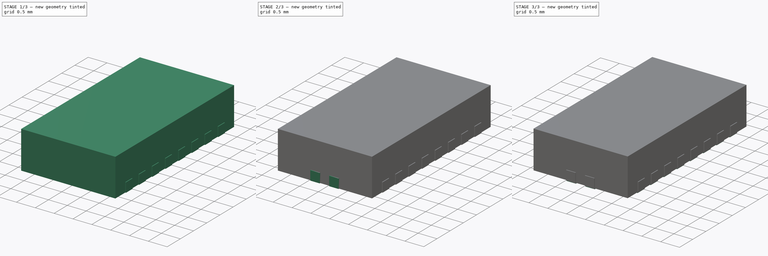
[diagram: build sequence overview — one tinted view per stage of 3, left to right]
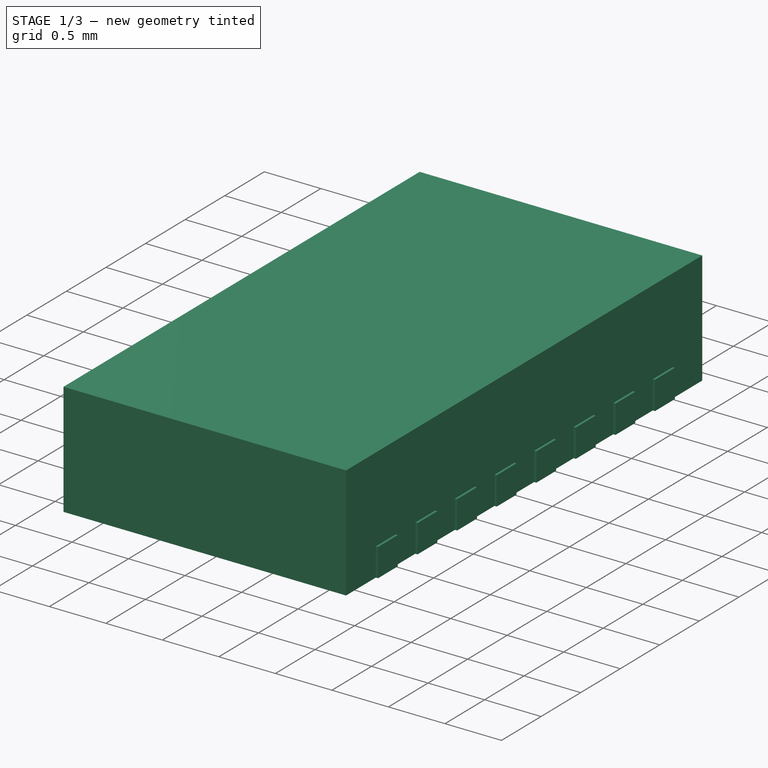
[diagram: stage 1 of 3 — iso view after this stage's code; geometry added in this stage tinted green]
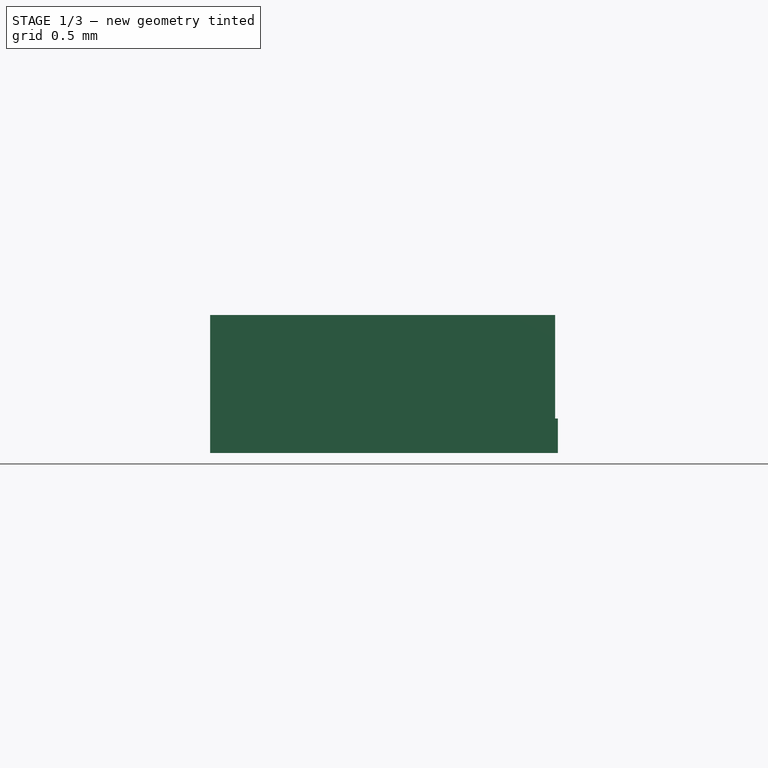
[diagram: stage 1 of 3 — front view after this stage's code; geometry added in this stage tinted green]
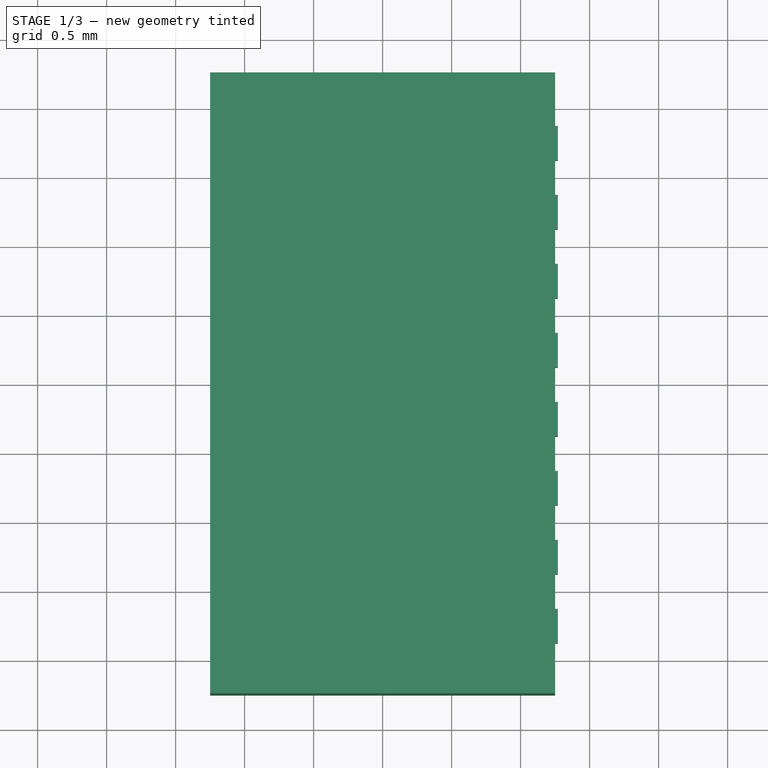
[diagram: stage 1 of 3 — top view after this stage's code; geometry added in this stage tinted green]
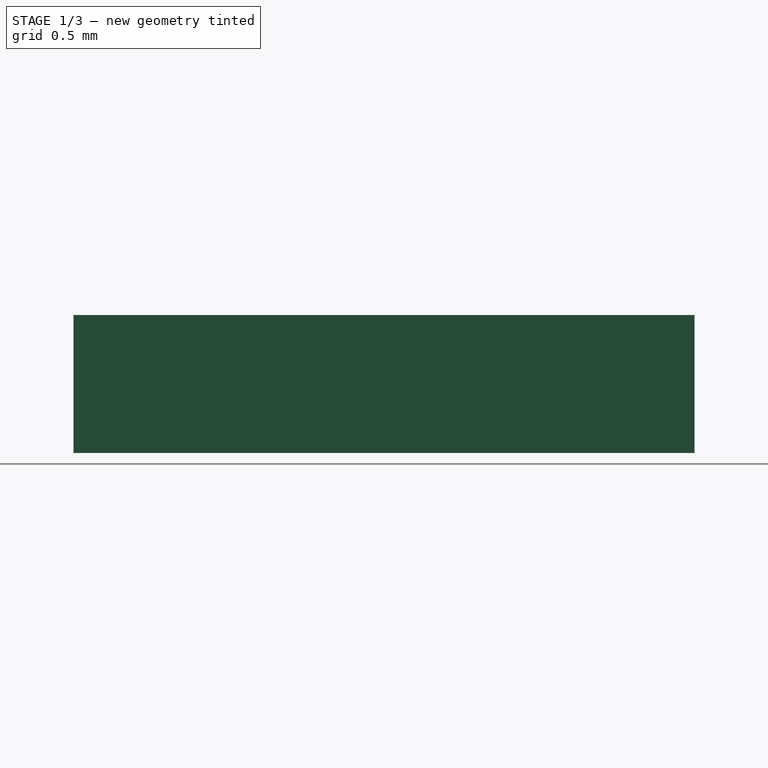
[diagram: stage 1 of 3 — right view after this stage's code; geometry added in this stage tinted green]
FCSTD DOCUMENT  (FreeCAD 0.19R24366 (Git))
Label: TQFN_ZB_20
License: All rights reserved
LicenseURL: http://en.wikipedia.org/wiki/All_rights_reserved
objects: Sketcher::SketchObject×4, PartDesign::Pad×4, PartDesign::LinearPattern×2, PartDesign::Body×1
note: 15 computed .brp shape members not serialized (recipe doc carries the construction recipe); baked Part::Feature solids carry a one-line shape summary decoded from their .brp

FEATURE [Sketcher::SketchObject] Sketch  label="BaseComponent"
  FullyConstrained = true
  MapMode = 5
  Support = -> [XY_Plane]
  sketch-geometry (4):
    g0: LineSegment StartX=-1.25 StartY=2.25 StartZ=0 EndX=1.25 EndY=2.25 EndZ=0
    g1: LineSegment StartX=1.25 StartY=2.25 StartZ=0 EndX=1.25 EndY=-2.25 EndZ=0
    g2: LineSegment StartX=1.25 StartY=-2.25 StartZ=0 EndX=-1.25 EndY=-2.25 EndZ=0
    g3: LineSegment StartX=-1.25 StartY=-2.25 StartZ=0 EndX=-1.25 EndY=2.25 EndZ=0
  constraints (11):
    c: Coincident(g0,g1)
    c: Coincident(g1,g2)
    c: Coincident(g2,g3)
    c: Coincident(g3,g0)
    c: Horizontal(g0)
    c: Horizontal(g2)
    c: Vertical(g1)
    c: Vertical(g3)
    c: Symmetric(g0,g1,g-1)
    c: DistanceY(g3,g3) = 4.5
    c: DistanceX(g0,g0) = 2.5
FEATURE [PartDesign::Pad] Pad  label="BaseComponent001"
  Direction = (1,1,1)
  Length = 1
  Length2 = 100
  Profile = -> Sketch
  Type = 0
FEATURE [Sketcher::SketchObject] Sketch001  label="solderpad_side"
  ExternalGeometry = -> [Pad]
  FullyConstrained = true
  MapMode = 5
  Placement = pos=(1.25,0,0) rot=(0.57735,0.57735,0.57735;2.0944rad)
  Support = -> [Pad]
  sketch-geometry (32):
    g0: LineSegment StartX=-0.375 StartY=0 StartZ=0 EndX=-0.125 EndY=0 EndZ=0
    g1: LineSegment StartX=-0.125 StartY=0 StartZ=0 EndX=-0.125 EndY=0.25 EndZ=0
    g2: LineSegment StartX=-0.125 StartY=0.25 StartZ=0 EndX=-0.375 EndY=0.25 EndZ=0
    g3: LineSegment StartX=-0.375 StartY=0.25 StartZ=0 EndX=-0.375 EndY=0 EndZ=0
    g4: LineSegment StartX=0.125 StartY=0 StartZ=0 EndX=0.375 EndY=0 EndZ=0
    g5: LineSegment StartX=0.375 StartY=0 StartZ=0 EndX=0.375 EndY=0.25 EndZ=0
    g6: LineSegment StartX=0.375 StartY=0.25 StartZ=0 EndX=0.125 EndY=0.25 EndZ=0
    g7: LineSegment StartX=0.125 StartY=0.25 StartZ=0 EndX=0.125 EndY=0 EndZ=0
    g8: LineSegment StartX=-0.875 StartY=0 StartZ=0 EndX=-0.625 EndY=0 EndZ=0
    g9: LineSegment StartX=-0.625 StartY=0 StartZ=0 EndX=-0.625 EndY=0.25 EndZ=0
    g10: LineSegment StartX=-0.625 StartY=0.25 StartZ=0 EndX=-0.875 EndY=0.25 EndZ=0
    g11: LineSegment StartX=-0.875 StartY=0.25 StartZ=0 EndX=-0.875 EndY=0 EndZ=0
    g12: LineSegment StartX=-1.875 StartY=0 StartZ=0 EndX=-1.625 EndY=0 EndZ=0
    g13: LineSegment StartX=-1.625 StartY=0 StartZ=0 EndX=-1.625 EndY=0.25 EndZ=0
    g14: LineSegment StartX=-1.625 StartY=0.25 StartZ=0 EndX=-1.875 EndY=0.25 EndZ=0
    g15: LineSegment StartX=-1.875 StartY=0.25 StartZ=0 EndX=-1.875 EndY=0 EndZ=0
    g16: LineSegment StartX=-1.375 StartY=0 StartZ=0 EndX=-1.125 EndY=0 EndZ=0
    g17: LineSegment StartX=-1.125 StartY=0 StartZ=0 EndX=-1.125 EndY=0.25 EndZ=0
    g18: LineSegment StartX=-1.125 StartY=0.25 StartZ=0 EndX=-1.375 EndY=0.25 EndZ=0
    g19: LineSegment StartX=-1.375 StartY=0.25 StartZ=0 EndX=-1.375 EndY=0 EndZ=0
    g20: LineSegment StartX=0.625 StartY=0 StartZ=0 EndX=0.875 EndY=0 EndZ=0
    g21: LineSegment StartX=0.875 StartY=0 StartZ=0 EndX=0.875 EndY=0.25 EndZ=0
    g22: LineSegment StartX=0.875 StartY=0.25 StartZ=0 EndX=0.625 EndY=0.25 EndZ=0
    g23: LineSegment StartX=0.625 StartY=0.25 StartZ=0 EndX=0.625 EndY=0 EndZ=0
    g24: LineSegment StartX=1.125 StartY=0 StartZ=0 EndX=1.375 EndY=0 EndZ=0
    g25: LineSegment StartX=1.375 StartY=0 StartZ=0 EndX=1.375 EndY=0.25 EndZ=0
    g26: LineSegment StartX=1.375 StartY=0.25 StartZ=0 EndX=1.125 EndY=0.25 EndZ=0
    g27: LineSegment StartX=1.125 StartY=0.25 StartZ=0 EndX=1.125 EndY=0 EndZ=0
    g28: LineSegment StartX=1.625 StartY=-8.8712e-12 StartZ=0 EndX=1.875 EndY=-9.3638e-12 EndZ=0
    g29: LineSegment StartX=1.875 StartY=-9.3638e-12 StartZ=0 EndX=1.875 EndY=0.25 EndZ=0
    g30: LineSegment StartX=1.875 StartY=0.25 StartZ=0 EndX=1.625 EndY=0.25 EndZ=0
    g31: LineSegment StartX=1.625 StartY=0.25 StartZ=0 EndX=1.625 EndY=-8.8712e-12 EndZ=0
  constraints (89):
    c: Coincident(g0,g1)
    c: Coincident(g1,g2)
    c: Coincident(g2,g3)
    c: Coincident(g3,g0)
    c: Horizontal(g0)
    c: Horizontal(g2)
    c: Vertical(g1)
    c: Vertical(g3)
    c: PointOnObject(g0,g-4)
    c: Coincident(g4,g5)
    c: Coincident(g5,g6)
    c: Coincident(g6,g7)
    c: Coincident(g7,g4)
    c: Horizontal(g4)
    c: Horizontal(g6)
    c: Vertical(g5)
    c: Vertical(g7)
    c: Equal(g2,g3)
    c: Equal(g7,g6)
    c: DistanceX(g2,g2) = 0.25
    c: DistanceX(g6,g6) = 0.25
    c: DistanceX(g0,g4) = 0.5
    c: Symmetric(g0,g4,g-1)
    c: Coincident(g8,g9)
    c: Coincident(g9,g10)
    c: Coincident(g10,g11)
    c: Coincident(g11,g8)
    c: Horizontal(g10)
    c: Vertical(g9)
    c: Vertical(g11)
    c: Equal(g11,g10)
    c: DistanceX(g10,g10) = 0.25
    c: Coincident(g12,g13)
    c: Coincident(g13,g14)
    c: Coincident(g14,g15)
    c: Coincident(g15,g12)
    c: Horizontal(g14)
    c: Vertical(g13)
    c: Vertical(g15)
    c: Equal(g15,g14)
    c: DistanceX(g14,g14) = 0.25
    c: Tangent(g8,g-4)
    c: Tangent(g12,g-4)
    c: DistanceX(g8,g0) = 0.5
    c: Coincident(g16,g17)
    c: Coincident(g17,g18)
    c: Coincident(g18,g19)
    c: Coincident(g19,g16)
    c: Horizontal(g18)
    c: Vertical(g17)
    c: Vertical(g19)
    c: Tangent(g16,g-4)
    c: Equal(g18,g19)
    c: DistanceX(g18,g18) = 0.25
    c: DistanceX(g16,g8) = 0.5
    c: DistanceX(g12,g16) = 0.5
    c: Coincident(g20,g21)
    c: Coincident(g21,g22)
    c: Coincident(g22,g23)
    c: Coincident(g23,g20)
    c: Horizontal(g22)
    c: Vertical(g21)
    c: Vertical(g23)
    c: Equal(g23,g22)
    c: Equal(g6,g22) = 0.25
    c: Tangent(g20,g-4)
    c: Coincident(g24,g25)
    c: Coincident(g25,g26)
    c: Coincident(g26,g27)
    c: Coincident(g27,g24)
    c: Horizontal(g26)
    c: Vertical(g25)
    c: Vertical(g27)
    c: Equal(g27,g26)
    c: Coincident(g28,g29)
    c: Coincident(g29,g30)
    c: Coincident(g30,g31)
    c: Coincident(g31,g28)
    c: Horizontal(g30)
    c: Vertical(g29)
    c: Vertical(g31)
    c: Equal(g31,g30)
    c: DistanceX(g4,g20) = 0.5
    c: DistanceX(g20,g24) = 0.5
    c: DistanceX(g24,g28) = 0.5
    c: Equal(g6,g26)
    c: Equal(g26,g30)
    c: Tangent(g24,g-4)
    c: Tangent(g28,g-4)
FEATURE [PartDesign::Pad] Pad001  label="SolderPadSide"
  BaseFeature = -> Pad
  Direction = (1,1,1)
  Length = 0.02
  Length2 = 100
  Profile = -> Sketch001
  Type = 0
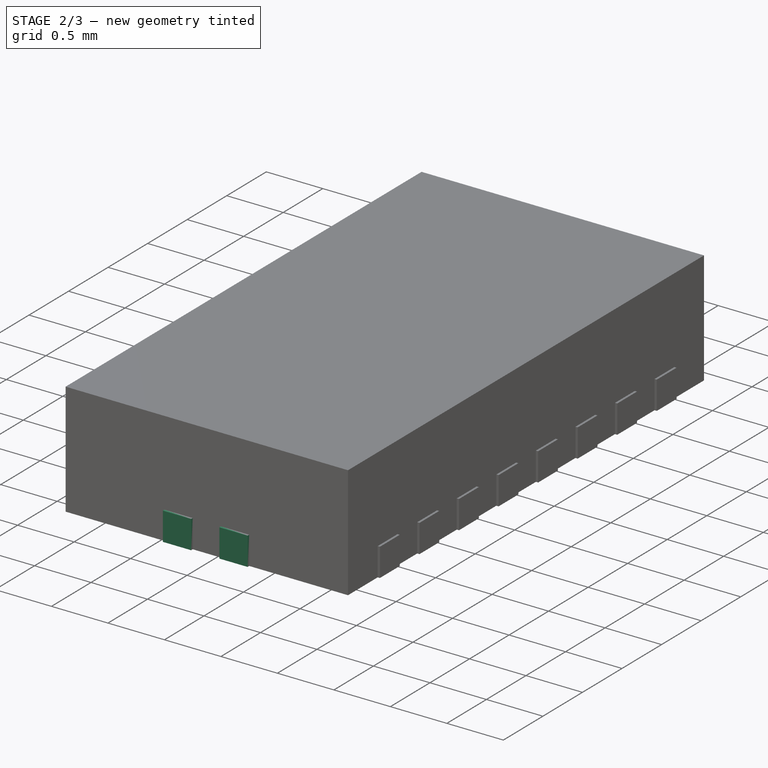
[diagram: stage 2 of 3 — iso view after this stage's code; geometry added in this stage tinted green]
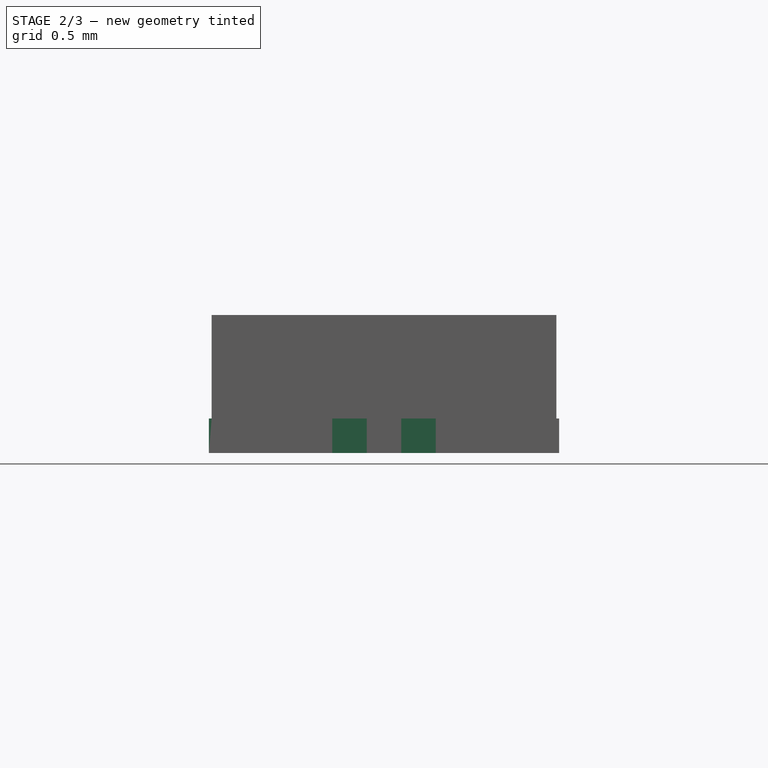
[diagram: stage 2 of 3 — front view after this stage's code; geometry added in this stage tinted green]
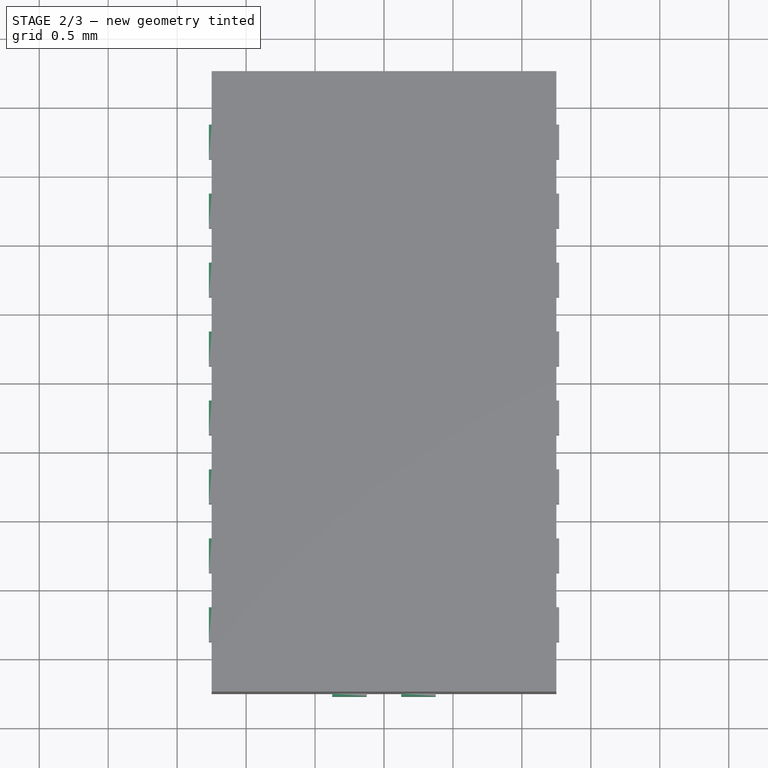
[diagram: stage 2 of 3 — top view after this stage's code; geometry added in this stage tinted green]
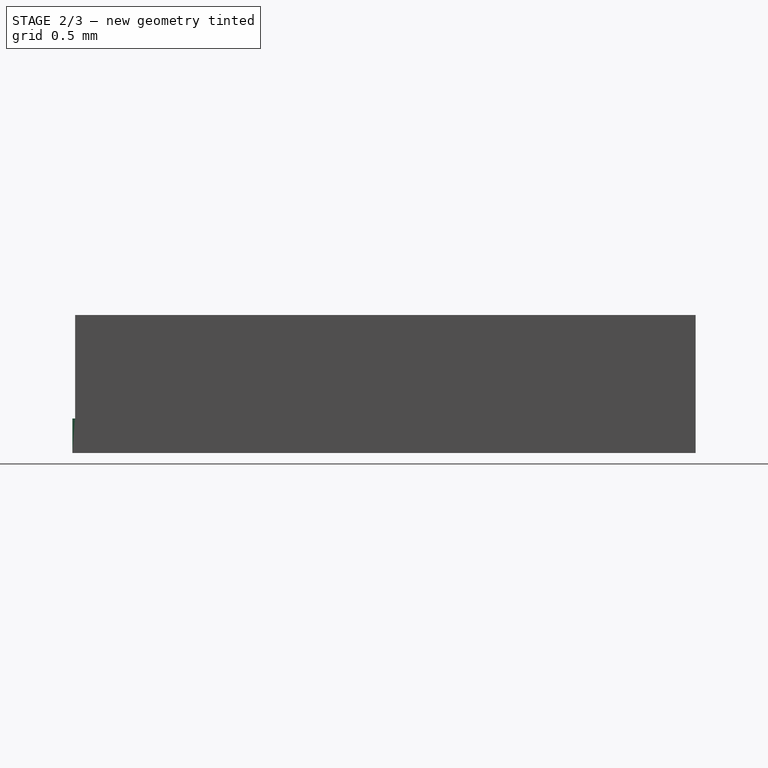
[diagram: stage 2 of 3 — right view after this stage's code; geometry added in this stage tinted green]
FEATURE [PartDesign::LinearPattern] LinearPattern  label="SolderPadSide2"
  BaseFeature = -> Pad001
  Direction = -> Sketch001 [N_Axis]
  Length = 2.52
  Occurrences = 2
  Originals = -> [Pad001]
  Reversed = true
FEATURE [Sketcher::SketchObject] Sketch002  label="solderpad_front"
  ExternalGeometry = -> [LinearPattern]
  FullyConstrained = true
  MapMode = 5
  Placement = pos=(0,-2.25,0) rot=(1,0,0;1.5708rad)
  Support = -> [LinearPattern]
  sketch-geometry (8):
    g0: LineSegment StartX=-0.375 StartY=0 StartZ=0 EndX=-0.125 EndY=0 EndZ=0
    g1: LineSegment StartX=-0.125 StartY=0 StartZ=0 EndX=-0.125 EndY=0.25 EndZ=0
    g2: LineSegment StartX=-0.125 StartY=0.25 StartZ=0 EndX=-0.375 EndY=0.25 EndZ=0
    g3: LineSegment StartX=-0.375 StartY=0.25 StartZ=0 EndX=-0.375 EndY=0 EndZ=0
    g4: LineSegment StartX=0.125 StartY=0 StartZ=0 EndX=0.375 EndY=0 EndZ=0
    g5: LineSegment StartX=0.375 StartY=0 StartZ=0 EndX=0.375 EndY=0.25 EndZ=0
    g6: LineSegment StartX=0.375 StartY=0.25 StartZ=0 EndX=0.125 EndY=0.25 EndZ=0
    g7: LineSegment StartX=0.125 StartY=0.25 StartZ=0 EndX=0.125 EndY=0 EndZ=0
  constraints (23):
    c: Coincident(g0,g1)
    c: Coincident(g1,g2)
    c: Coincident(g2,g3)
    c: Coincident(g3,g0)
    c: Horizontal(g0)
    c: Horizontal(g2)
    c: Vertical(g1)
    c: Vertical(g3)
    c: PointOnObject(g0,g-3)
    c: Coincident(g4,g5)
    c: Coincident(g5,g6)
    c: Coincident(g6,g7)
    c: Coincident(g7,g4)
    c: Horizontal(g4)
    c: Horizontal(g6)
    c: Vertical(g5)
    c: Vertical(g7)
    c: Symmetric(g0,g4,g-1)
    c: Equal(g6,g7)
    c: Equal(g2,g1)
    c: DistanceX(g2,g2) = 0.25
    c: DistanceX(g6,g6) = 0.25
    c: DistanceX(g0,g4) = 0.5
FEATURE [PartDesign::Pad] Pad002  label="SolderPadFront"
  BaseFeature = -> LinearPattern
  Direction = (1,1,1)
  Length = 0.02
  Length2 = 100
  Profile = -> Sketch002
  Type = 0
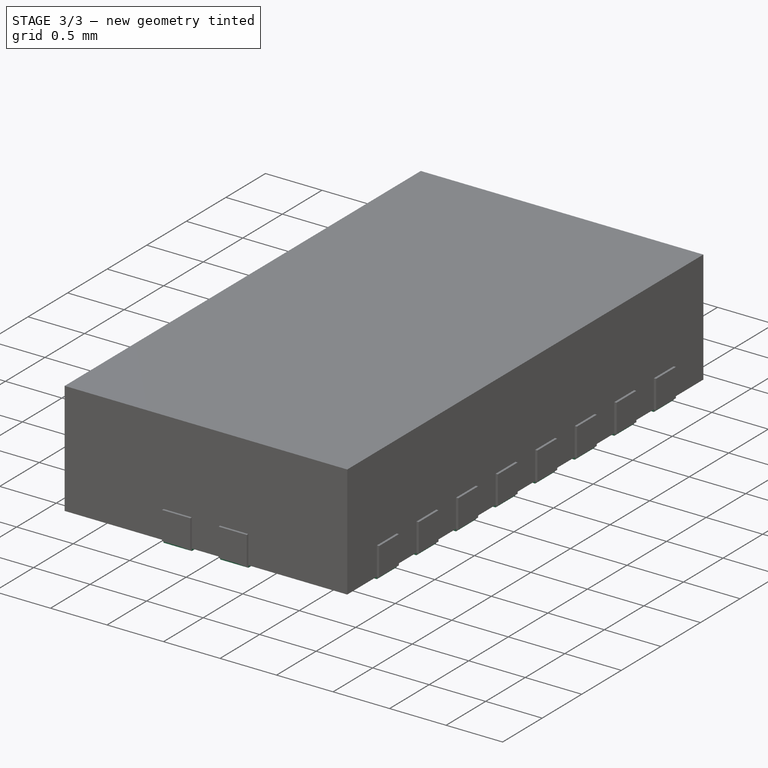
[diagram: stage 3 of 3 — iso view after this stage's code; geometry added in this stage tinted green]
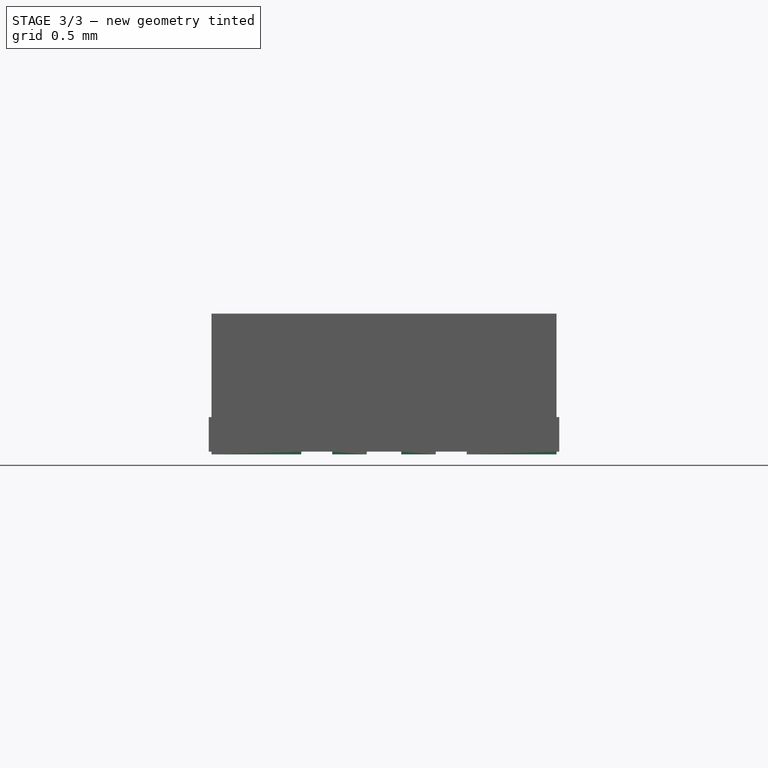
[diagram: stage 3 of 3 — front view after this stage's code; geometry added in this stage tinted green]
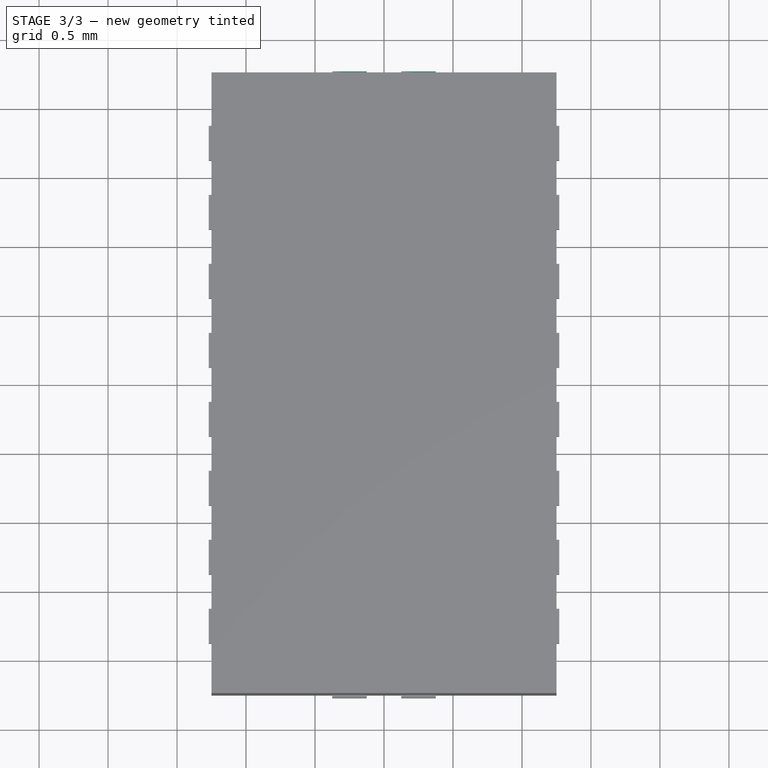
[diagram: stage 3 of 3 — top view after this stage's code; geometry added in this stage tinted green]
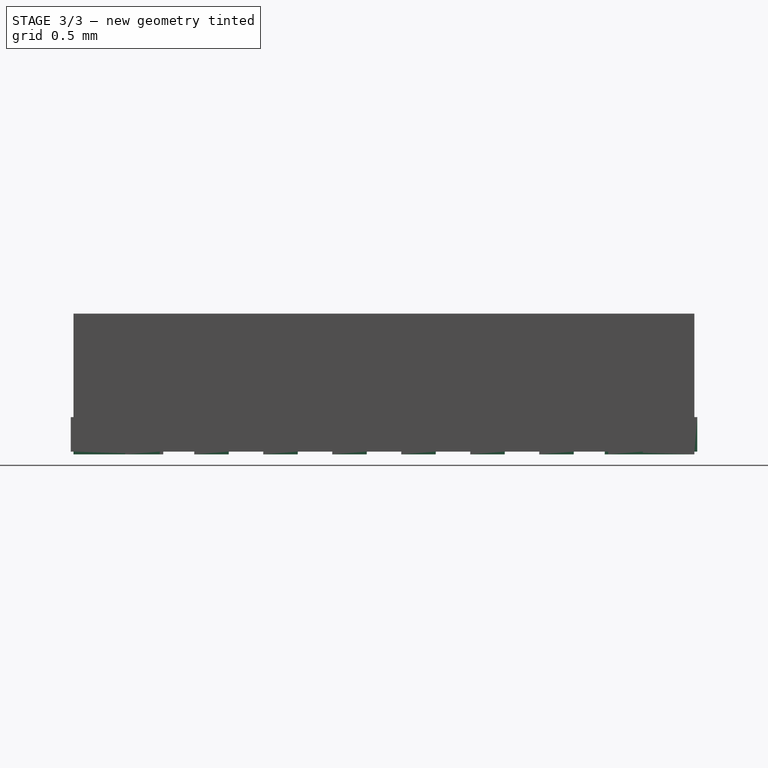
[diagram: stage 3 of 3 — right view after this stage's code; geometry added in this stage tinted green]
FEATURE [PartDesign::LinearPattern] LinearPattern001  label="SolderPadRear"
  BaseFeature = -> Pad002
  Direction = -> Sketch002 [N_Axis]
  Length = 4.52
  Occurrences = 2
  Originals = -> [Pad002]
  Reversed = true
FEATURE [Sketcher::SketchObject] Sketch003  label="solderbottom"
  ExternalGeometry = -> [LinearPattern001]
  FullyConstrained = true
  MapMode = 5
  Placement = pos=(0,0,0) rot=(1,0,0;3.14159rad)
  Support = -> [LinearPattern001]
  sketch-geometry (80):
    g0: LineSegment StartX=-1.25 StartY=1.875 StartZ=0 EndX=-0.6 EndY=1.875 EndZ=0
    g1: LineSegment StartX=-0.6 StartY=1.875 StartZ=0 EndX=-0.6 EndY=1.625 EndZ=0
    g2: LineSegment StartX=-0.6 StartY=1.625 StartZ=0 EndX=-1.25 EndY=1.625 EndZ=0
    g3: LineSegment StartX=-1.25 StartY=1.625 StartZ=0 EndX=-1.25 EndY=1.875 EndZ=0
    g4: LineSegment StartX=-1.25 StartY=1.375 StartZ=0 EndX=-0.6 EndY=1.375 EndZ=0
    g5: LineSegment StartX=-0.6 StartY=1.375 StartZ=0 EndX=-0.6 EndY=1.125 EndZ=0
    g6: LineSegment StartX=-0.6 StartY=1.125 StartZ=0 EndX=-1.25 EndY=1.125 EndZ=0
    g7: LineSegment StartX=-1.25 StartY=1.125 StartZ=0 EndX=-1.25 EndY=1.375 EndZ=0
    g8: LineSegment StartX=-1.25 StartY=0.875 StartZ=0 EndX=-0.6 EndY=0.875 EndZ=0
    g9: LineSegment StartX=-0.6 StartY=0.875 StartZ=0 EndX=-0.6 EndY=0.625 EndZ=0
    g10: LineSegment StartX=-0.6 StartY=0.625 StartZ=0 EndX=-1.25 EndY=0.625 EndZ=0
    g11: LineSegment StartX=-1.25 StartY=0.625 StartZ=0 EndX=-1.25 EndY=0.875 EndZ=0
    g12: LineSegment StartX=-1.25 StartY=0.375 StartZ=0 EndX=-0.6 EndY=0.375 EndZ=0
    g13: LineSegment StartX=-0.6 StartY=0.375 StartZ=0 EndX=-0.6 EndY=0.125 EndZ=0
    g14: LineSegment StartX=-0.6 StartY=0.125 StartZ=0 EndX=-1.25 EndY=0.125 EndZ=0
    g15: LineSegment StartX=-1.25 StartY=0.125 StartZ=0 EndX=-1.25 EndY=0.375 EndZ=0
    g16: LineSegment StartX=-1.25 StartY=-0.125 StartZ=0 EndX=-0.6 EndY=-0.125 EndZ=0
    g17: LineSegment StartX=-0.6 StartY=-0.125 StartZ=0 EndX=-0.6 EndY=-0.375 EndZ=0
    g18: LineSegment StartX=-0.6 StartY=-0.375 StartZ=0 EndX=-1.25 EndY=-0.375 EndZ=0
    g19: LineSegment StartX=-1.25 StartY=-0.375 StartZ=0 EndX=-1.25 EndY=-0.125 EndZ=0
    g20: LineSegment StartX=-1.25 StartY=-0.625 StartZ=0 EndX=-0.6 EndY=-0.625 EndZ=0
    g21: LineSegment StartX=-0.6 StartY=-0.625 StartZ=0 EndX=-0.6 EndY=-0.875 EndZ=0
    g22: LineSegment StartX=-0.6 StartY=-0.875 StartZ=0 EndX=-1.25 EndY=-0.875 EndZ=0
    g23: LineSegment StartX=-1.25 StartY=-0.875 StartZ=0 EndX=-1.25 EndY=-0.625 EndZ=0
    g24: LineSegment StartX=-1.25 StartY=-1.125 StartZ=0 EndX=-0.6 EndY=-1.125 EndZ=0
    g25: LineSegment StartX=-0.6 StartY=-1.125 StartZ=0 EndX=-0.6 EndY=-1.375 EndZ=0
    g26: LineSegment StartX=-0.6 StartY=-1.375 StartZ=0 EndX=-1.25 EndY=-1.375 EndZ=0
    g27: LineSegment StartX=-1.25 StartY=-1.375 StartZ=0 EndX=-1.25 EndY=-1.125 EndZ=0
    g28: LineSegment StartX=-1.25 StartY=-1.625 StartZ=0 EndX=-0.6 EndY=-1.625 EndZ=0
    g29: LineSegment StartX=-0.6 StartY=-1.625 StartZ=0 EndX=-0.6 EndY=-1.875 EndZ=0
    g30: LineSegment StartX=-0.6 StartY=-1.875 StartZ=0 EndX=-1.25 EndY=-1.875 EndZ=0
    g31: LineSegment StartX=-1.25 StartY=-1.875 StartZ=0 EndX=-1.25 EndY=-1.625 EndZ=0
    g32: LineSegment StartX=-0.375 StartY=-2.25 StartZ=0 EndX=-0.125 EndY=-2.25 EndZ=0
    g33: LineSegment StartX=-0.125 StartY=-2.25 StartZ=0 EndX=-0.125 EndY=-1.6 EndZ=0
    g34: LineSegment StartX=-0.125 StartY=-1.6 StartZ=0 EndX=-0.375 EndY=-1.6 EndZ=0
    g35: LineSegment StartX=-0.375 StartY=-1.6 StartZ=0 EndX=-0.375 EndY=-2.25 EndZ=0
    g36: LineSegment StartX=0.125 StartY=-2.25 StartZ=0 EndX=0.375 EndY=-2.25 EndZ=0
    g37: LineSegment StartX=0.375 StartY=-2.25 StartZ=0 EndX=0.375 EndY=-1.6 EndZ=0
    g38: LineSegment StartX=0.375 StartY=-1.6 StartZ=0 EndX=0.125 EndY=-1.6 EndZ=0
    g39: LineSegment StartX=0.125 StartY=-1.6 StartZ=0 EndX=0.125 EndY=-2.25 EndZ=0
    g40: LineSegment StartX=1.25 StartY=-1.875 StartZ=0 EndX=0.6 EndY=-1.875 EndZ=0
    g41: LineSegment StartX=0.6 StartY=-1.875 StartZ=0 EndX=0.6 EndY=-1.625 EndZ=0
    g42: LineSegment StartX=0.6 StartY=-1.625 StartZ=0 EndX=1.25 EndY=-1.625 EndZ=0
    g43: LineSegment StartX=1.25 StartY=-1.625 StartZ=0 EndX=1.25 EndY=-1.875 EndZ=0
    g44: LineSegment StartX=1.25 StartY=-1.375 StartZ=0 EndX=0.6 EndY=-1.375 EndZ=0
    g45: LineSegment StartX=0.6 StartY=-1.375 StartZ=0 EndX=0.6 EndY=-1.125 EndZ=0
    g46: LineSegment StartX=0.6 StartY=-1.125 StartZ=0 EndX=1.25 EndY=-1.125 EndZ=0
    g47: LineSegment StartX=1.25 StartY=-1.125 StartZ=0 EndX=1.25 EndY=-1.375 EndZ=0
    g48: LineSegment StartX=1.25 StartY=-0.875 StartZ=0 EndX=0.6 EndY=-0.875 EndZ=0
    g49: LineSegment StartX=0.6 StartY=-0.875 StartZ=0 EndX=0.6 EndY=-0.625 EndZ=0
    g50: LineSegment StartX=0.6 StartY=-0.625 StartZ=0 EndX=1.25 EndY=-0.625 EndZ=0
    g51: LineSegment StartX=1.25 StartY=-0.625 StartZ=0 EndX=1.25 EndY=-0.875 EndZ=0
    g52: LineSegment StartX=1.25 StartY=-0.375 StartZ=0 EndX=0.6 EndY=-0.375 EndZ=0
    g53: LineSegment StartX=0.6 StartY=-0.375 StartZ=0 EndX=0.6 EndY=-0.125 EndZ=0
    g54: LineSegment StartX=0.6 StartY=-0.125 StartZ=0 EndX=1.25 EndY=-0.125 EndZ=0
    g55: LineSegment StartX=1.25 StartY=-0.125 StartZ=0 EndX=1.25 EndY=-0.375 EndZ=0
    g56: LineSegment StartX=1.25 StartY=0.125 StartZ=0 EndX=0.6 EndY=0.125 EndZ=0
    g57: LineSegment StartX=0.6 StartY=0.125 StartZ=0 EndX=0.6 EndY=0.375 EndZ=0
    g58: LineSegment StartX=0.6 StartY=0.375 StartZ=0 EndX=1.25 EndY=0.375 EndZ=0
    g59: LineSegment StartX=1.25 StartY=0.375 StartZ=0 EndX=1.25 EndY=0.125 EndZ=0
    g60: LineSegment StartX=1.25 StartY=0.625 StartZ=0 EndX=0.6 EndY=0.625 EndZ=0
    g61: LineSegment StartX=0.6 StartY=0.625 StartZ=0 EndX=0.6 EndY=0.875 EndZ=0
    g62: LineSegment StartX=0.6 StartY=0.875 StartZ=0 EndX=1.25 EndY=0.875 EndZ=0
    g63: LineSegment StartX=1.25 StartY=0.875 StartZ=0 EndX=1.25 EndY=0.625 EndZ=0
    g64: LineSegment StartX=1.25 StartY=1.125 StartZ=0 EndX=0.6 EndY=1.125 EndZ=0
    g65: LineSegment StartX=0.6 StartY=1.125 StartZ=0 EndX=0.6 EndY=1.375 EndZ=0
    g66: LineSegment StartX=0.6 StartY=1.375 StartZ=0 EndX=1.25 EndY=1.375 EndZ=0
    g67: LineSegment StartX=1.25 StartY=1.375 StartZ=0 EndX=1.25 EndY=1.125 EndZ=0
    g68: LineSegment StartX=1.25 StartY=1.625 StartZ=0 EndX=0.6 EndY=1.625 EndZ=0
    g69: LineSegment StartX=0.6 StartY=1.625 StartZ=0 EndX=0.6 EndY=1.875 EndZ=0
    g70: LineSegment StartX=0.6 StartY=1.875 StartZ=0 EndX=1.25 EndY=1.875 EndZ=0
    g71: LineSegment StartX=1.25 StartY=1.875 StartZ=0 EndX=1.25 EndY=1.625 EndZ=0
    g72: LineSegment StartX=0.375 StartY=2.25 StartZ=0 EndX=0.125 EndY=2.25 EndZ=0
    g73: LineSegment StartX=0.125 StartY=2.25 StartZ=0 EndX=0.125 EndY=1.6 EndZ=0
    g74: LineSegment StartX=0.125 StartY=1.6 StartZ=0 EndX=0.375 EndY=1.6 EndZ=0
    g75: LineSegment StartX=0.375 StartY=1.6 StartZ=0 EndX=0.375 EndY=2.25 EndZ=0
    g76: LineSegment StartX=-0.125 StartY=2.25 StartZ=0 EndX=-0.375 EndY=2.25 EndZ=0
    g77: LineSegment StartX=-0.375 StartY=2.25 StartZ=0 EndX=-0.375 EndY=1.6 EndZ=0
    g78: LineSegment StartX=-0.375 StartY=1.6 StartZ=0 EndX=-0.125 EndY=1.6 EndZ=0
    g79: LineSegment StartX=-0.125 StartY=1.6 StartZ=0 EndX=-0.125 EndY=2.25 EndZ=0
  constraints (219):
    c: Coincident(g0,g1)
    c: Coincident(g1,g2)
    c: Coincident(g2,g3)
    c: Coincident(g3,g0)
    c: Horizontal(g0)
    c: Horizontal(g2)
    c: Vertical(g1)
    c: Vertical(g3)
    c: Coincident(g0,g-5)
    c: Coincident(g4,g5)
    c: Coincident(g5,g6)
    c: Coincident(g6,g7)
    c: Coincident(g7,g4)
    c: Horizontal(g4)
    c: Horizontal(g6)
    c: Vertical(g5)
    c: Coincident(g4,g-8)
    c: Coincident(g8,g9)
    c: Coincident(g9,g10)
    c: Coincident(g10,g11)
    c: Coincident(g11,g8)
    c: Horizontal(g8)
    c: Horizontal(g10)
    c: Vertical(g9)
    c: Vertical(g11)
    c: Coincident(g8,g-9)
    c: Coincident(g12,g13)
    c: Coincident(g13,g14)
    c: Coincident(g14,g15)
    c: Coincident(g15,g12)
    c: Horizontal(g12)
    c: Horizontal(g14)
    c: Vertical(g13)
    c: Vertical(g15)
    c: Coincident(g12,g-10)
    c: Coincident(g16,g17)
    c: Coincident(g17,g18)
    c: Coincident(g18,g19)
    c: Coincident(g19,g16)
    c: Horizontal(g16)
    c: Horizontal(g18)
    c: Vertical(g17)
    c: Vertical(g19)
    c: Coincident(g16,g-11)
    c: Coincident(g20,g21)
    c: Coincident(g21,g22)
    c: Coincident(g22,g23)
    c: Coincident(g23,g20)
    c: Horizontal(g20)
    c: Horizontal(g22)
    c: Vertical(g21)
    c: Vertical(g23)
    c: Coincident(g20,g-12)
    c: Coincident(g24,g25)
    c: Coincident(g25,g26)
    c: Coincident(g26,g27)
    c: Coincident(g27,g24)
    c: Horizontal(g24)
    c: Horizontal(g26)
    c: Vertical(g25)
    c: Vertical(g27)
    c: Coincident(g24,g-13)
    c: Coincident(g28,g29)
    c: Coincident(g29,g30)
    c: Coincident(g30,g31)
    c: Coincident(g31,g28)
    c: Horizontal(g28)
    c: Horizontal(g30)
    c: Vertical(g29)
    c: Vertical(g31)
    c: Coincident(g28,g-14)
    c: Coincident(g32,g33)
    c: Coincident(g33,g34)
    c: Coincident(g34,g35)
    c: Coincident(g35,g32)
    c: Horizontal(g32)
    c: Horizontal(g34)
    c: Vertical(g33)
    c: Vertical(g35)
    c: Coincident(g32,g-21)
    c: Coincident(g36,g37)
    c: Coincident(g37,g38)
    c: Coincident(g38,g39)
    c: Coincident(g39,g36)
    c: Horizontal(g36)
    c: Horizontal(g38)
    c: Vertical(g37)
    c: Vertical(g39)
    c: Coincident(g36,g-22)
    c: Coincident(g40,g41)
    c: Coincident(g41,g42)
    c: Coincident(g42,g43)
    c: Coincident(g43,g40)
    c: Horizontal(g40)
    c: Horizontal(g42)
    c: Vertical(g41)
    c: Vertical(g43)
    c: Coincident(g40,g-15)
    c: Coincident(g44,g45)
    c: Coincident(g45,g46)
    c: Coincident(g46,g47)
    c: Coincident(g47,g44)
    c: Horizontal(g44)
    c: Horizontal(g46)
    c: Vertical(g45)
    c: Vertical(g47)
    c: Coincident(g44,g-16)
    c: Coincident(g48,g49)
    c: Coincident(g49,g50)
    c: Coincident(g50,g51)
    c: Coincident(g51,g48)
    c: Horizontal(g48)
    c: Horizontal(g50)
    c: Vertical(g49)
    c: Vertical(g51)
    c: Coincident(g48,g-17)
    c: Coincident(g52,g53)
    c: Coincident(g53,g54)
    c: Coincident(g54,g55)
    c: Coincident(g55,g52)
    c: Horizontal(g52)
    c: Horizontal(g54)
    c: Vertical(g53)
    c: Vertical(g55)
    c: Coincident(g52,g-18)
    c: Coincident(g56,g57)
    c: Coincident(g57,g58)
    c: Coincident(g58,g59)
    c: Coincident(g59,g56)
    c: Horizontal(g56)
    c: Horizontal(g58)
    c: Vertical(g57)
    c: Vertical(g59)
    c: Coincident(g56,g-19)
    c: Coincident(g60,g61)
    c: Coincident(g61,g62)
    c: Coincident(g62,g63)
    c: Coincident(g63,g60)
    c: Horizontal(g60)
    c: Horizontal(g62)
    c: Vertical(g61)
    c: Vertical(g63)
    c: Coincident(g60,g-20)
    c: Coincident(g64,g65)
    c: Coincident(g65,g66)
    c: Coincident(g66,g67)
    c: Coincident(g67,g64)
    c: Horizontal(g64)
    c: Horizontal(g66)
    c: Vertical(g65)
    c: Vertical(g67)
    c: Coincident(g64,g-7)
    c: Coincident(g68,g69)
    c: Coincident(g69,g70)
    c: Coincident(g70,g71)
    c: Coincident(g71,g68)
    c: Horizontal(g68)
    c: Horizontal(g70)
    c: Vertical(g69)
    c: Vertical(g71)
    c: Coincident(g68,g-6)
    c: Coincident(g72,g73)
    c: Coincident(g73,g74)
    c: Coincident(g74,g75)
    c: Coincident(g75,g72)
    c: Horizontal(g72)
    c: Horizontal(g74)
    c: Vertical(g73)
    c: Vertical(g75)
    c: Coincident(g72,g-3)
    c: Coincident(g76,g77)
    c: Coincident(g77,g78)
    c: Coincident(g78,g79)
    c: Coincident(g79,g76)
    c: Horizontal(g76)
    c: Horizontal(g78)
    c: Vertical(g77)
    c: Vertical(g79)
    c: Coincident(g76,g-4)
    c: DistanceX(g0,g0) = 0.65
    c: Coincident(g6,g-8)
    c: DistanceY(g3,g3) = 0.25
    c: Equal(g2,g4)
    c: Equal(g6,g8)
    c: Equal(g10,g12)
    c: Equal(g14,g16)
    c: Equal(g18,g20)
    c: Equal(g22,g24)
    c: Equal(g26,g28)
    c: Equal(g30,g35)
    c: Equal(g33,g39)
    c: Equal(g37,g40)
    c: Equal(g42,g44)
    c: Equal(g46,g48)
    c: Equal(g50,g52)
    c: Equal(g54,g56)
    c: Equal(g58,g60)
    c: Equal(g62,g64)
    c: Equal(g66,g68)
    c: Equal(g70,g75)
    c: Equal(g73,g79)
    c: Equal(g78,g74)
    c: Equal(g74,g5)
    c: Equal(g5,g69)
    c: Equal(g69,g65)
    c: Equal(g65,g61)
    c: Equal(g61,g9)
    c: Equal(g9,g13)
    c: Equal(g13,g57)
    c: Equal(g57,g17)
    c: Equal(g17,g53)
    c: Equal(g53,g49)
    c: Equal(g49,g21)
    c: Equal(g21,g25)
    c: Equal(g25,g45)
    c: Equal(g45,g41)
    c: Equal(g41,g29)
    c: Equal(g29,g34)
    c: Equal(g34,g38)
FEATURE [PartDesign::Pad] Pad003  label="SolderBottom"
  BaseFeature = -> LinearPattern001
  Direction = (1,1,1)
  Length = 0.02
  Length2 = 100
  Profile = -> Sketch003
  Type = 0
FEATURE [PartDesign::Body] Body
  Group = -> [Sketch,Pad,Sketch001,Pad001,LinearPattern,Sketch002,Pad002,LinearPattern001,Sketch003,Pad003]
  Origin = -> Origin
  Tip = -> Pad003
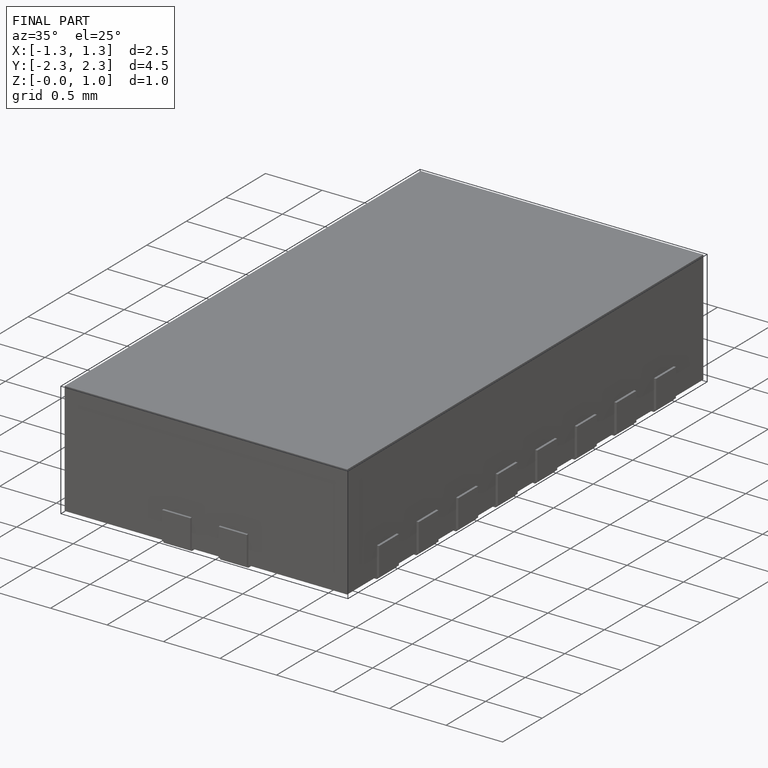
[diagram: finished part — iso view with bounding-box wireframe]
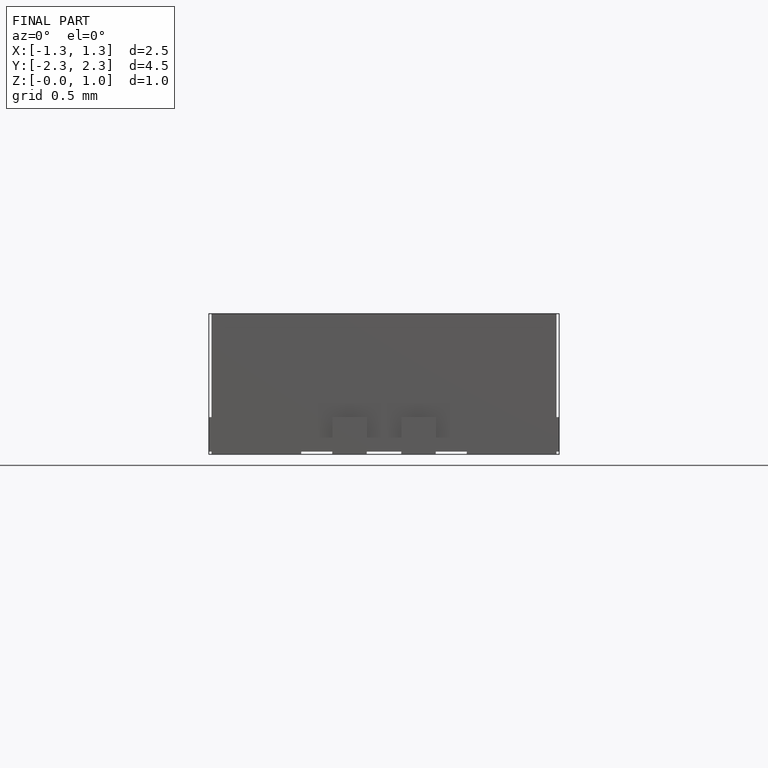
[diagram: finished part — front view with bounding-box wireframe]
